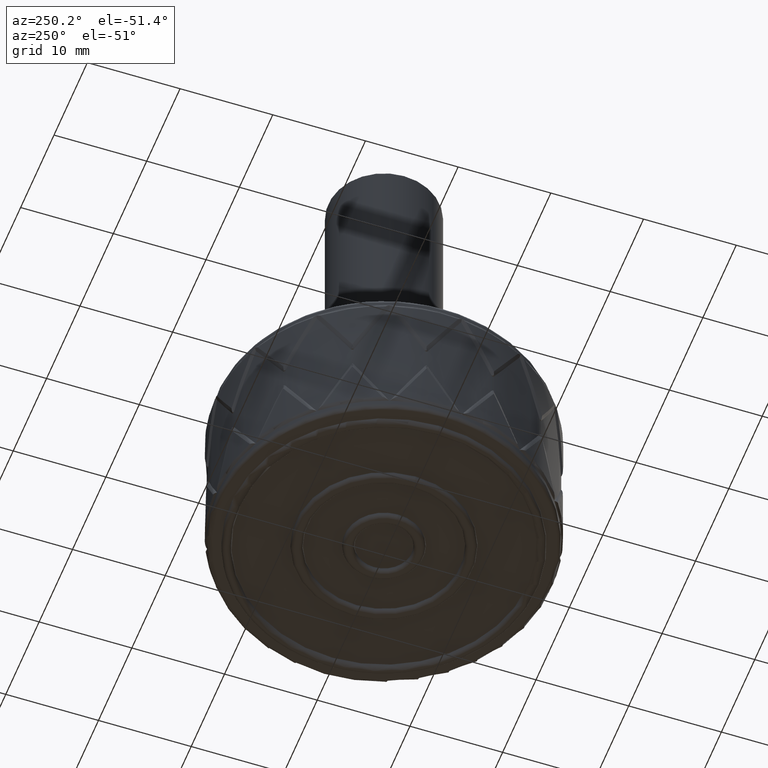
[diagram: clean part render]
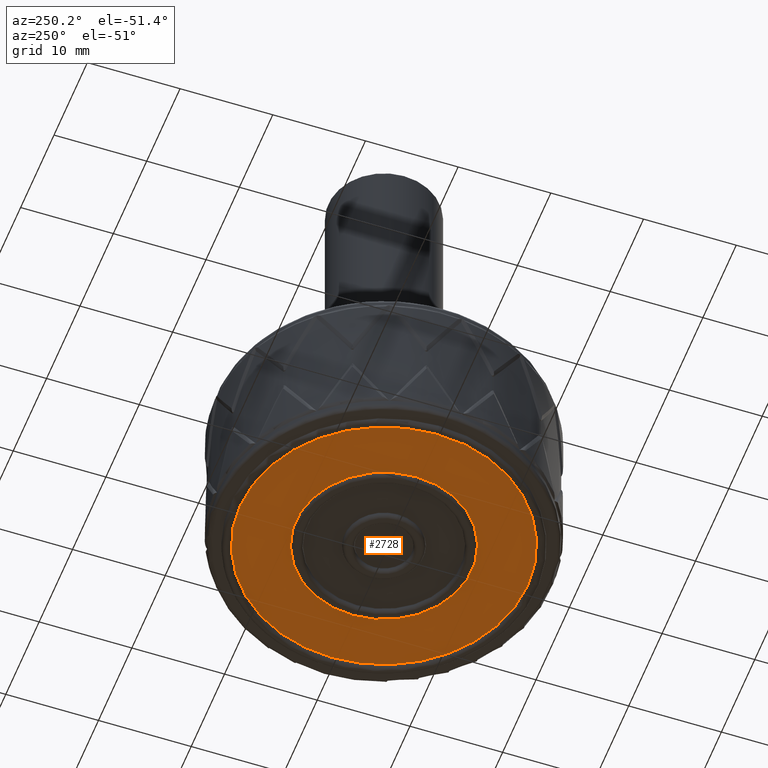
[diagram: same view with one face highlighted and labeled with its STEP entity id]
A machine part, auxiliary view. The second image highlights one B-rep face of the part: STEP entity #2728.
In plain terms, the highlighted planar face has unit normal (0, 0, 1).
Its self-contained STEP definition (entity closure, byte-faithful):
#548=PLANE('',#2804);
#582=FACE_BOUND('',#953,.T.);
#751=FACE_OUTER_BOUND('',#952,.T.);
#952=EDGE_LOOP('',(#2523));
#953=EDGE_LOOP('',(#2524));
#970=CIRCLE('',#2789,9.5);
#978=CIRCLE('',#2803,15.5);
#1256=VERTEX_POINT('',#12679);
#1264=VERTEX_POINT('',#12701);
#1677=EDGE_CURVE('',#1256,#1256,#970,.T.);
#1685=EDGE_CURVE('',#1264,#1264,#978,.T.);
#2523=ORIENTED_EDGE('',*,*,#1685,.T.);
#2524=ORIENTED_EDGE('',*,*,#1677,.T.);
#2728=ADVANCED_FACE('',(#751,#582),#548,.F.);
#2789=AXIS2_PLACEMENT_3D('',#12680,#2921,#2922);
#2803=AXIS2_PLACEMENT_3D('',#12702,#2949,#2950);
#2804=AXIS2_PLACEMENT_3D('',#12703,#2951,#2952);
#2921=DIRECTION('center_axis',(0.,0.,1.));
#2922=DIRECTION('ref_axis',(1.,0.,0.));
#2949=DIRECTION('center_axis',(0.,0.,-1.));
#2950=DIRECTION('ref_axis',(1.,0.,0.));
#2951=DIRECTION('center_axis',(0.,0.,1.));
#2952=DIRECTION('ref_axis',(1.,0.,0.));
#12679=CARTESIAN_POINT('',(-9.5,1.16341445918999E-15,0.));
#12680=CARTESIAN_POINT('Origin',(0.,0.,0.));
#12701=CARTESIAN_POINT('',(-15.5,1.8982025386784E-15,0.));
#12702=CARTESIAN_POINT('Origin',(0.,0.,0.));
#12703=CARTESIAN_POINT('Origin',(-1.00608444552037E-15,4.11193712824132E-16,
0.));